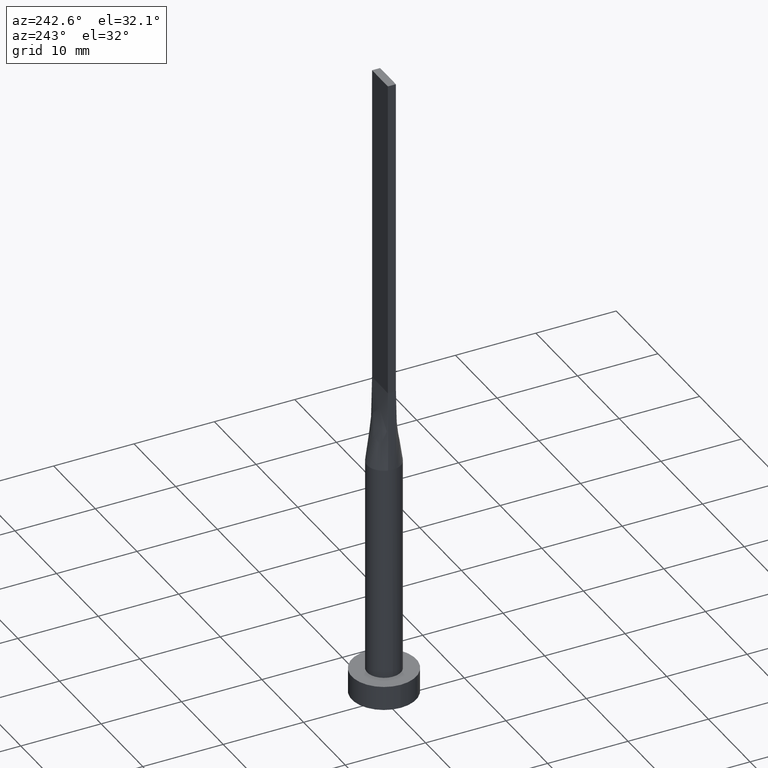
[diagram: clean part render]
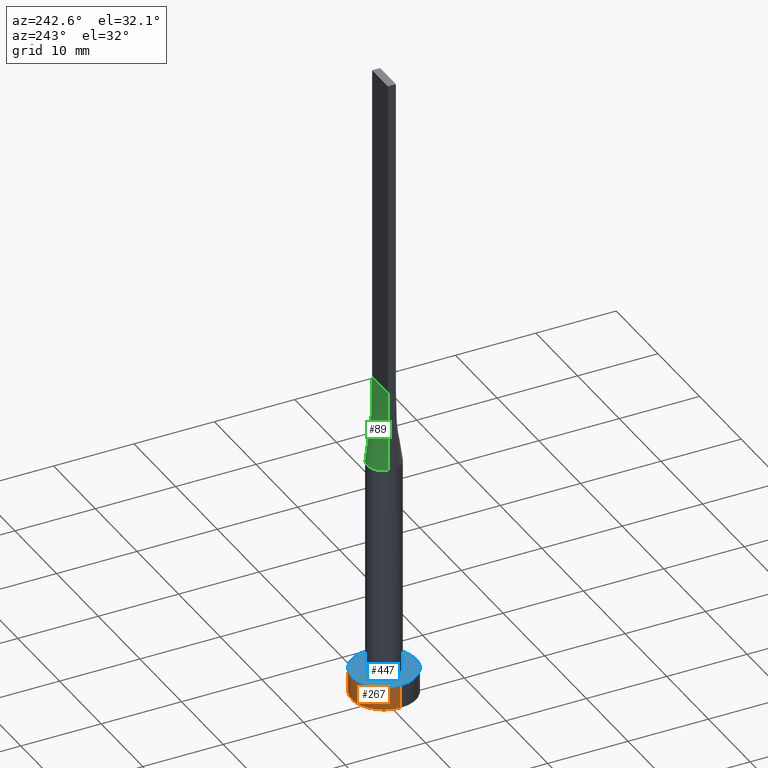
[diagram: same view with three faces highlighted in distinct colors, each labeled with its STEP entity id]
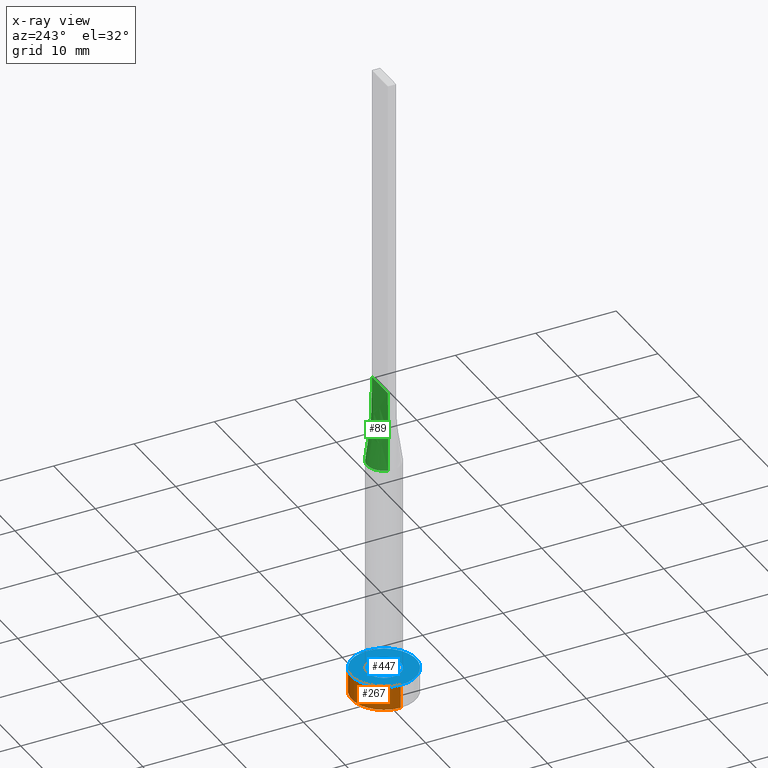
[diagram: x-ray of the same camera — body ghosted, the three highlighted faces saturated]
A machine part, auxiliary view with three faces highlighted in distinct colors.
The next image is the same camera in x-ray (body ghosted, the three faces saturated) — at least one of them is partly hidden behind the body in this view.
Their STEP definitions:

[orange] entity #267 — the highlighted cylindrical surface (edge-blend (fillet) strip) has radius 4 mm, axis along (-0, -0, -1).
#1 = EDGE_CURVE ( 'NONE', #156, #295, #469, .T. ) ;
#4 = EDGE_CURVE ( 'NONE', #156, #260, #410, .T. ) ;
#6 = CARTESIAN_POINT ( 'NONE',  ( 4.000000000000000000, 4.898587196589412829E-16, 0.000000000000000000 ) ) ;
#36 = DIRECTION ( 'NONE',  ( -0.000000000000000000, -0.000000000000000000, -1.000000000000000000 ) ) ;
#43 = DIRECTION ( 'NONE',  ( 1.000000000000000000, 0.000000000000000000, 0.000000000000000000 ) ) ;
#45 = CARTESIAN_POINT ( 'NONE',  ( 4.000000000000000000, 4.898587196589412829E-16, 3.000000000000000000 ) ) ;
#47 = EDGE_CURVE ( 'NONE', #260, #272, #79, .T. ) ;
#61 = CARTESIAN_POINT ( 'NONE',  ( 4.000000000000000000, 4.898587196589412829E-16, 3.000000000000000000 ) ) ;
#79 = CIRCLE ( 'NONE', #490, 4.000000000000000000 ) ;
#101 = AXIS2_PLACEMENT_3D ( 'NONE', #407, #501, #43 ) ;
#107 = ORIENTED_EDGE ( 'NONE', *, *, #4, .T. ) ;
#156 = VERTEX_POINT ( 'NONE', #61 ) ;
#176 = VECTOR ( 'NONE', #477, 1000.000000000000000 ) ;
#183 = FACE_OUTER_BOUND ( 'NONE', #223, .T. ) ;
#200 = CARTESIAN_POINT ( 'NONE',  ( 0.000000000000000000, 0.000000000000000000, 0.000000000000000000 ) ) ;
#210 = CARTESIAN_POINT ( 'NONE',  ( 0.000000000000000000, 0.000000000000000000, 3.000000000000000000 ) ) ;
#223 = EDGE_LOOP ( 'NONE', ( #494, #107, #309, #465 ) ) ;
#246 = DIRECTION ( 'NONE',  ( 1.000000000000000000, 0.000000000000000000, 0.000000000000000000 ) ) ;
#260 = VERTEX_POINT ( 'NONE', #6 ) ;
#267 = ADVANCED_FACE ( 'NONE', ( #183 ), #372, .T. ) ;
#272 = VERTEX_POINT ( 'NONE', #389 ) ;
#295 = VERTEX_POINT ( 'NONE', #339 ) ;
#309 = ORIENTED_EDGE ( 'NONE', *, *, #47, .T. ) ;
#339 = CARTESIAN_POINT ( 'NONE',  ( -4.000000000000000000, 0.000000000000000000, 3.000000000000000000 ) ) ;
#372 = CYLINDRICAL_SURFACE ( 'NONE', #460, 4.000000000000000000 ) ;
#389 = CARTESIAN_POINT ( 'NONE',  ( -4.000000000000000000, 0.000000000000000000, 0.000000000000000000 ) ) ;
#393 = DIRECTION ( 'NONE',  ( 0.000000000000000000, 0.000000000000000000, 1.000000000000000000 ) ) ;
#407 = CARTESIAN_POINT ( 'NONE',  ( 0.000000000000000000, 0.000000000000000000, 3.000000000000000000 ) ) ;
#410 = LINE ( 'NONE', #45, #176 ) ;
#424 = VECTOR ( 'NONE', #495, 1000.000000000000000 ) ;
#460 = AXIS2_PLACEMENT_3D ( 'NONE', #210, #36, #572 ) ;
#465 = ORIENTED_EDGE ( 'NONE', *, *, #573, .F. ) ;
#469 = CIRCLE ( 'NONE', #101, 4.000000000000000000 ) ;
#477 = DIRECTION ( 'NONE',  ( -0.000000000000000000, -0.000000000000000000, -1.000000000000000000 ) ) ;
#487 = CARTESIAN_POINT ( 'NONE',  ( -4.000000000000000000, 0.000000000000000000, 3.000000000000000000 ) ) ;
#490 = AXIS2_PLACEMENT_3D ( 'NONE', #200, #393, #246 ) ;
#494 = ORIENTED_EDGE ( 'NONE', *, *, #1, .F. ) ;
#495 = DIRECTION ( 'NONE',  ( -0.000000000000000000, -0.000000000000000000, -1.000000000000000000 ) ) ;
#501 = DIRECTION ( 'NONE',  ( 0.000000000000000000, 0.000000000000000000, 1.000000000000000000 ) ) ;
#528 = LINE ( 'NONE', #487, #424 ) ;
#572 = DIRECTION ( 'NONE',  ( -1.000000000000000000, 0.000000000000000000, 0.000000000000000000 ) ) ;
#573 = EDGE_CURVE ( 'NONE', #295, #272, #528, .T. ) ;

[blue] entity #447 — the highlighted planar face has unit normal (0, 0, 1).
#1 = EDGE_CURVE ( 'NONE', #156, #295, #469, .T. ) ;
#5 = DIRECTION ( 'NONE',  ( 0.000000000000000000, 0.000000000000000000, 1.000000000000000000 ) ) ;
#43 = DIRECTION ( 'NONE',  ( 1.000000000000000000, 0.000000000000000000, 0.000000000000000000 ) ) ;
#51 = ORIENTED_EDGE ( 'NONE', *, *, #253, .F. ) ;
#61 = CARTESIAN_POINT ( 'NONE',  ( 4.000000000000000000, 4.898587196589412829E-16, 3.000000000000000000 ) ) ;
#101 = AXIS2_PLACEMENT_3D ( 'NONE', #407, #501, #43 ) ;
#103 = CIRCLE ( 'NONE', #406, 2.100000000000000089 ) ;
#109 = CARTESIAN_POINT ( 'NONE',  ( 0.000000000000000000, 0.000000000000000000, 3.000000000000000000 ) ) ;
#134 = CARTESIAN_POINT ( 'NONE',  ( -2.100000000000000089, 0.000000000000000000, 3.000000000000000000 ) ) ;
#139 = AXIS2_PLACEMENT_3D ( 'NONE', #205, #338, #298 ) ;
#156 = VERTEX_POINT ( 'NONE', #61 ) ;
#178 = VERTEX_POINT ( 'NONE', #553 ) ;
#191 = DIRECTION ( 'NONE',  ( 1.000000000000000000, 0.000000000000000000, 0.000000000000000000 ) ) ;
#205 = CARTESIAN_POINT ( 'NONE',  ( 0.000000000000000000, 0.000000000000000000, 3.000000000000000000 ) ) ;
#243 = EDGE_LOOP ( 'NONE', ( #455, #375 ) ) ;
#253 = EDGE_CURVE ( 'NONE', #178, #417, #451, .T. ) ;
#273 = DIRECTION ( 'NONE',  ( 0.000000000000000000, 0.000000000000000000, 1.000000000000000000 ) ) ;
#289 = DIRECTION ( 'NONE',  ( 1.000000000000000000, 0.000000000000000000, 0.000000000000000000 ) ) ;
#295 = VERTEX_POINT ( 'NONE', #339 ) ;
#298 = DIRECTION ( 'NONE',  ( 1.000000000000000000, 0.000000000000000000, 0.000000000000000000 ) ) ;
#314 = AXIS2_PLACEMENT_3D ( 'NONE', #426, #273, #191 ) ;
#338 = DIRECTION ( 'NONE',  ( 0.000000000000000000, 0.000000000000000000, 1.000000000000000000 ) ) ;
#339 = CARTESIAN_POINT ( 'NONE',  ( -4.000000000000000000, 0.000000000000000000, 3.000000000000000000 ) ) ;
#370 = PLANE ( 'NONE',  #500 ) ;
#375 = ORIENTED_EDGE ( 'NONE', *, *, #1, .T. ) ;
#406 = AXIS2_PLACEMENT_3D ( 'NONE', #109, #568, #289 ) ;
#407 = CARTESIAN_POINT ( 'NONE',  ( 0.000000000000000000, 0.000000000000000000, 3.000000000000000000 ) ) ;
#416 = CIRCLE ( 'NONE', #139, 4.000000000000000000 ) ;
#417 = VERTEX_POINT ( 'NONE', #134 ) ;
#418 = FACE_OUTER_BOUND ( 'NONE', #243, .T. ) ;
#419 = CARTESIAN_POINT ( 'NONE',  ( 0.000000000000000000, 0.000000000000000000, 3.000000000000000000 ) ) ;
#426 = CARTESIAN_POINT ( 'NONE',  ( 0.000000000000000000, 0.000000000000000000, 3.000000000000000000 ) ) ;
#447 = ADVANCED_FACE ( 'NONE', ( #457, #418 ), #370, .T. ) ;
#451 = CIRCLE ( 'NONE', #314, 2.100000000000000089 ) ;
#455 = ORIENTED_EDGE ( 'NONE', *, *, #492, .T. ) ;
#457 = FACE_BOUND ( 'NONE', #540, .T. ) ;
#469 = CIRCLE ( 'NONE', #101, 4.000000000000000000 ) ;
#483 = EDGE_CURVE ( 'NONE', #417, #178, #103, .T. ) ;
#492 = EDGE_CURVE ( 'NONE', #295, #156, #416, .T. ) ;
#500 = AXIS2_PLACEMENT_3D ( 'NONE', #419, #5, #548 ) ;
#501 = DIRECTION ( 'NONE',  ( 0.000000000000000000, 0.000000000000000000, 1.000000000000000000 ) ) ;
#505 = ORIENTED_EDGE ( 'NONE', *, *, #483, .F. ) ;
#540 = EDGE_LOOP ( 'NONE', ( #505, #51 ) ) ;
#548 = DIRECTION ( 'NONE',  ( 1.000000000000000000, 0.000000000000000000, -0.000000000000000000 ) ) ;
#553 = CARTESIAN_POINT ( 'NONE',  ( 2.100000000000000089, 2.571758278209441957E-16, 3.000000000000000000 ) ) ;
#568 = DIRECTION ( 'NONE',  ( 0.000000000000000000, 0.000000000000000000, 1.000000000000000000 ) ) ;

[green] entity #89 — the highlighted face is a freeform B-spline surface patch.
#2 = CARTESIAN_POINT ( 'NONE',  ( -1.583604922800830428, 1.399063468093436402, 29.99999999999999289 ) ) ;
#29 = CARTESIAN_POINT ( 'NONE',  ( 0.5389299406762297906, 2.046272663899431077, 30.00000000000000355 ) ) ;
#34 = CARTESIAN_POINT ( 'NONE',  ( -1.719043754744861596, 1.223020672007445242, 29.99999999999999289 ) ) ;
#37 = FACE_OUTER_BOUND ( 'NONE', #38, .T. ) ;
#38 = EDGE_LOOP ( 'NONE', ( #123, #534, #168, #132 ) ) ;
#46 = CARTESIAN_POINT ( 'NONE',  ( 1.021961681204346606, 1.852908961101259244, 30.00000000000000355 ) ) ;
#53 = B_SPLINE_CURVE_WITH_KNOTS ( 'NONE', 3,
 ( #481, #566, #294, #412, #538, #83, #46, #414, #542, #263, #315, #222, #496, #2, #130, #313, #264, #446 ),
 .UNSPECIFIED., .F., .F.,
 ( 4, 2, 2, 2, 2, 2, 2, 2, 4 ),
 ( 0.000000000000000000, 0.1250000000000000278, 0.2500000000000000555, 0.3750000000000001110, 0.5000000000000000000, 0.6250000000000000000, 0.7500000000000000000, 0.8750000000000001110, 1.000000000000000000 ),
 .UNSPECIFIED. ) ;
#74 = VERTEX_POINT ( 'NONE', #252 ) ;
#75 = EDGE_CURVE ( 'NONE', #74, #275, #53, .T. ) ;
#83 = CARTESIAN_POINT ( 'NONE',  ( 1.235326090059014614, 1.714395692508636770, 30.00000000000001421 ) ) ;
#84 = CARTESIAN_POINT ( 'NONE',  ( 1.583333333333332815, 0.5000000000000002220, 40.00000000000000000 ) ) ;
#85 = CARTESIAN_POINT ( 'NONE',  ( 1.987786580065029174, 0.6981017315960605929, 30.00000000000000355 ) ) ;
#86 = CARTESIAN_POINT ( 'NONE',  ( -1.965428264125778535, 0.5172179642436262048, 35.00000000000000000 ) ) ;
#88 = CARTESIAN_POINT ( 'NONE',  ( -2.030856528251557602, 0.5344359284872521876, 30.00000000000000000 ) ) ;
#89 = ADVANCED_FACE ( 'NONE', ( #37 ), #116, .T. ) ;
#90 = CARTESIAN_POINT ( 'NONE',  ( 0.6333333333333323045, 0.5000000000000002220, 39.99999999999999289 ) ) ;
#110 = LINE ( 'NONE', #291, #356 ) ;
#116 = B_SPLINE_SURFACE_WITH_KNOTS ( 'NONE', 3, 1, ( 
 ( #215, #218 ),
 ( #85, #453 ),
 ( #172, #84 ),
 ( #493, #411 ),
 ( #449, #364 ),
 ( #544, #167 ),
 ( #503, #90 ),
 ( #29, #376 ),
 ( #276, #144 ),
 ( #514, #327 ),
 ( #551, #234 ),
 ( #197, #332 ),
 ( #211, #283 ),
 ( #401, #489 ),
 ( #34, #355 ),
 ( #240, #443 ),
 ( #193, #244 ),
 ( #88, #371 ) ),
 .UNSPECIFIED., .F., .F., .F.,
 ( 4, 2, 2, 2, 2, 2, 2, 2, 4 ),
 ( 2, 2 ),
 ( 0.000000000000000000, 0.1250000000000000278, 0.2500000000000000555, 0.3750000000000001110, 0.5000000000000000000, 0.6250000000000000000, 0.7500000000000000000, 0.8750000000000001110, 1.000000000000000000 ),
 ( 0.000000000000000000, 1.000000000000000000 ),
 .UNSPECIFIED. ) ;
#117 = LINE ( 'NONE', #521, #434 ) ;
#123 = ORIENTED_EDGE ( 'NONE', *, *, #75, .T. ) ;
#130 = CARTESIAN_POINT ( 'NONE',  ( -1.719043754744861596, 1.223020672007445242, 29.99999999999999289 ) ) ;
#132 = ORIENTED_EDGE ( 'NONE', *, *, #325, .F. ) ;
#144 = CARTESIAN_POINT ( 'NONE',  ( 0.1583333333333324933, 0.5000000000000002220, 39.99999999999999289 ) ) ;
#164 = DIRECTION ( 'NONE',  ( 0.01308445504626045038, -0.003443277643752733208, 0.9999084662483913588 ) ) ;
#167 = CARTESIAN_POINT ( 'NONE',  ( 0.7916666666666657415, 0.5000000000000002220, 39.99999999999999289 ) ) ;
#168 = ORIENTED_EDGE ( 'NONE', *, *, #464, .F. ) ;
#172 = CARTESIAN_POINT ( 'NONE',  ( 1.920830191244603746, 0.8725264301372623876, 29.99999999999998934 ) ) ;
#177 = VECTOR ( 'NONE', #164, 1000.000000000000114 ) ;
#193 = CARTESIAN_POINT ( 'NONE',  ( -1.987786580065029174, 0.6981017315960602598, 30.00000000000000000 ) ) ;
#197 = CARTESIAN_POINT ( 'NONE',  ( -1.021961681204346384, 1.852908961101259022, 30.00000000000000000 ) ) ;
#211 = CARTESIAN_POINT ( 'NONE',  ( -1.235326090059014836, 1.714395692508636326, 30.00000000000000000 ) ) ;
#215 = CARTESIAN_POINT ( 'NONE',  ( 2.030856528251557602, 0.5344359284872521876, 30.00000000000000000 ) ) ;
#218 = CARTESIAN_POINT ( 'NONE',  ( 1.899999999999999689, 0.5000000000000002220, 40.00000000000000000 ) ) ;
#222 = CARTESIAN_POINT ( 'NONE',  ( -1.021961681204346384, 1.852908961101259022, 30.00000000000000000 ) ) ;
#234 = CARTESIAN_POINT ( 'NONE',  ( -0.3166666666666672625, 0.5000000000000002220, 39.99999999999999289 ) ) ;
#240 = CARTESIAN_POINT ( 'NONE',  ( -1.920830191244604412, 0.8725264301372623876, 29.99999999999999645 ) ) ;
#244 = CARTESIAN_POINT ( 'NONE',  ( -1.741666666666666696, 0.5000000000000002220, 39.99999999999999289 ) ) ;
#252 = CARTESIAN_POINT ( 'NONE',  ( 2.030996101999494652, 0.5344731476277209126, 30.00000000000000000 ) ) ;
#263 = CARTESIAN_POINT ( 'NONE',  ( -0.2698109971861040179, 2.100000000000000089, 30.00000000000000000 ) ) ;
#264 = CARTESIAN_POINT ( 'NONE',  ( -1.987786580065029174, 0.6981017315960602598, 30.00000000000000000 ) ) ;
#275 = VERTEX_POINT ( 'NONE', #564 ) ;
#276 = CARTESIAN_POINT ( 'NONE',  ( 0.2698109971861041290, 2.100000000000000089, 30.00000000000000000 ) ) ;
#283 = CARTESIAN_POINT ( 'NONE',  ( -0.7916666666666670737, 0.5000000000000002220, 39.99999999999999289 ) ) ;
#291 = CARTESIAN_POINT ( 'NONE',  ( 1.965428264125778535, 0.5172179642436265379, 35.00000000000000000 ) ) ;
#294 = CARTESIAN_POINT ( 'NONE',  ( 1.920830191244603746, 0.8725264301372623876, 29.99999999999998934 ) ) ;
#313 = CARTESIAN_POINT ( 'NONE',  ( -1.920830191244604412, 0.8725264301372623876, 29.99999999999999645 ) ) ;
#315 = CARTESIAN_POINT ( 'NONE',  ( -0.5389299406762299016, 2.046272663899431965, 29.99999999999999645 ) ) ;
#325 = EDGE_CURVE ( 'NONE', #74, #486, #110, .T. ) ;
#327 = CARTESIAN_POINT ( 'NONE',  ( -0.1583333333333339921, 0.5000000000000002220, 39.99999999999999289 ) ) ;
#332 = CARTESIAN_POINT ( 'NONE',  ( -0.6333333333333338588, 0.5000000000000002220, 39.99999999999999289 ) ) ;
#355 = CARTESIAN_POINT ( 'NONE',  ( -1.266666666666666829, 0.5000000000000002220, 39.99999999999999289 ) ) ;
#356 = VECTOR ( 'NONE', #525, 1000.000000000000114 ) ;
#363 = VERTEX_POINT ( 'NONE', #394 ) ;
#364 = CARTESIAN_POINT ( 'NONE',  ( 1.108333333333332504, 0.5000000000000002220, 39.99999999999999289 ) ) ;
#371 = CARTESIAN_POINT ( 'NONE',  ( -1.899999999999999689, 0.5000000000000002220, 40.00000000000000000 ) ) ;
#376 = CARTESIAN_POINT ( 'NONE',  ( 0.3166666666666656527, 0.5000000000000002220, 39.99999999999999289 ) ) ;
#394 = CARTESIAN_POINT ( 'NONE',  ( -1.899999999999999689, 0.5000000000000002220, 40.00000000000000000 ) ) ;
#401 = CARTESIAN_POINT ( 'NONE',  ( -1.583604922800830428, 1.399063468093436402, 29.99999999999999289 ) ) ;
#409 = LINE ( 'NONE', #86, #177 ) ;
#411 = CARTESIAN_POINT ( 'NONE',  ( 1.266666666666665941, 0.5000000000000002220, 39.99999999999999289 ) ) ;
#412 = CARTESIAN_POINT ( 'NONE',  ( 1.719043754744862040, 1.223020672007445464, 29.99999999999998934 ) ) ;
#414 = CARTESIAN_POINT ( 'NONE',  ( 0.5389299406762297906, 2.046272663899431077, 30.00000000000000355 ) ) ;
#434 = VECTOR ( 'NONE', #529, 1000.000000000000000 ) ;
#443 = CARTESIAN_POINT ( 'NONE',  ( -1.583333333333333481, 0.5000000000000002220, 39.99999999999999289 ) ) ;
#446 = CARTESIAN_POINT ( 'NONE',  ( -2.031019593402089818, 0.5344793603115657321, 30.00000000000000000 ) ) ;
#449 = CARTESIAN_POINT ( 'NONE',  ( 1.583604922800830428, 1.399063468093436624, 30.00000000000000000 ) ) ;
#453 = CARTESIAN_POINT ( 'NONE',  ( 1.741666666666666252, 0.5000000000000002220, 40.00000000000000000 ) ) ;
#464 = EDGE_CURVE ( 'NONE', #486, #363, #117, .T. ) ;
#481 = CARTESIAN_POINT ( 'NONE',  ( 2.030996101999494652, 0.5344731476277209126, 30.00000000000000000 ) ) ;
#486 = VERTEX_POINT ( 'NONE', #517 ) ;
#489 = CARTESIAN_POINT ( 'NONE',  ( -1.108333333333333615, 0.5000000000000002220, 39.99999999999999289 ) ) ;
#493 = CARTESIAN_POINT ( 'NONE',  ( 1.719043754744862040, 1.223020672007445464, 29.99999999999998934 ) ) ;
#496 = CARTESIAN_POINT ( 'NONE',  ( -1.235326090059014836, 1.714395692508636326, 30.00000000000000000 ) ) ;
#503 = CARTESIAN_POINT ( 'NONE',  ( 1.021961681204346606, 1.852908961101259244, 30.00000000000000355 ) ) ;
#512 = EDGE_CURVE ( 'NONE', #275, #363, #409, .T. ) ;
#514 = CARTESIAN_POINT ( 'NONE',  ( -0.2698109971861040179, 2.100000000000000089, 30.00000000000000000 ) ) ;
#517 = CARTESIAN_POINT ( 'NONE',  ( 1.899999999999999689, 0.5000000000000002220, 40.00000000000000000 ) ) ;
#521 = CARTESIAN_POINT ( 'NONE',  ( -1.899999999999999689, 0.5000000000000002220, 40.00000000000000000 ) ) ;
#525 = DIRECTION ( 'NONE',  ( -0.01308445504626045038, -0.003443277643752798260, 0.9999084662483913588 ) ) ;
#529 = DIRECTION ( 'NONE',  ( -1.000000000000000000, -0.000000000000000000, -0.000000000000000000 ) ) ;
#534 = ORIENTED_EDGE ( 'NONE', *, *, #512, .T. ) ;
#538 = CARTESIAN_POINT ( 'NONE',  ( 1.583604922800830428, 1.399063468093436624, 30.00000000000000000 ) ) ;
#542 = CARTESIAN_POINT ( 'NONE',  ( 0.2698109971861041290, 2.100000000000000089, 30.00000000000000000 ) ) ;
#544 = CARTESIAN_POINT ( 'NONE',  ( 1.235326090059014614, 1.714395692508636770, 30.00000000000001421 ) ) ;
#551 = CARTESIAN_POINT ( 'NONE',  ( -0.5389299406762299016, 2.046272663899431965, 29.99999999999999645 ) ) ;
#564 = CARTESIAN_POINT ( 'NONE',  ( -2.031019593402089818, 0.5344793603115657321, 30.00000000000000000 ) ) ;
#566 = CARTESIAN_POINT ( 'NONE',  ( 1.987786580065029174, 0.6981017315960605929, 30.00000000000000355 ) ) ;